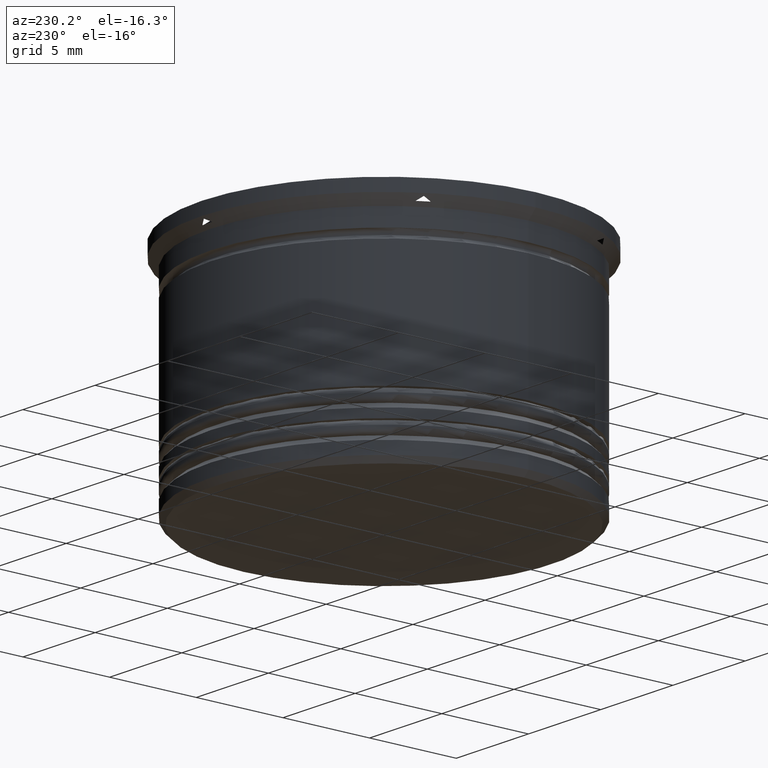
[diagram: clean part render]
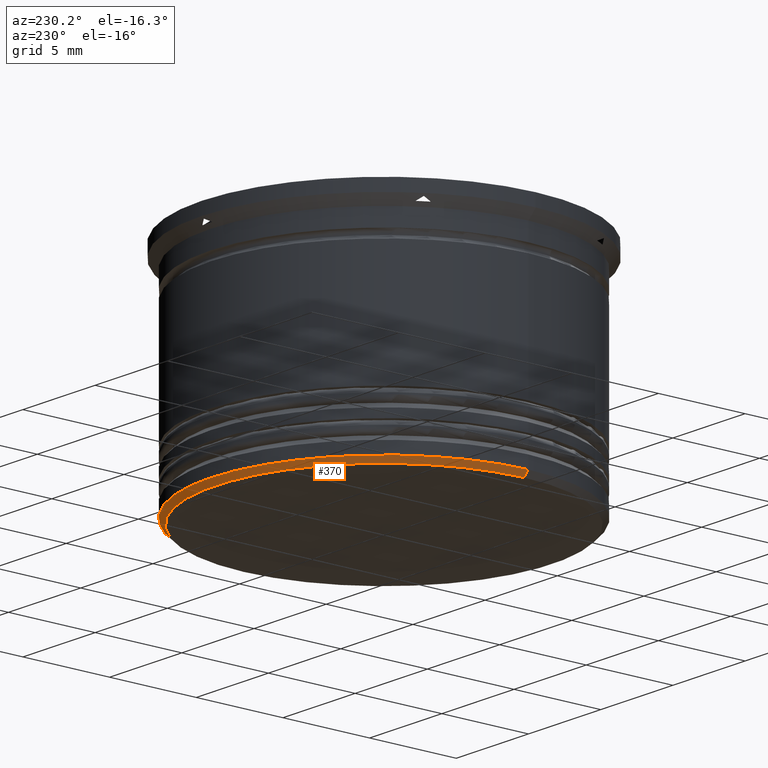
[diagram: same view with one face highlighted and labeled with its STEP entity id]
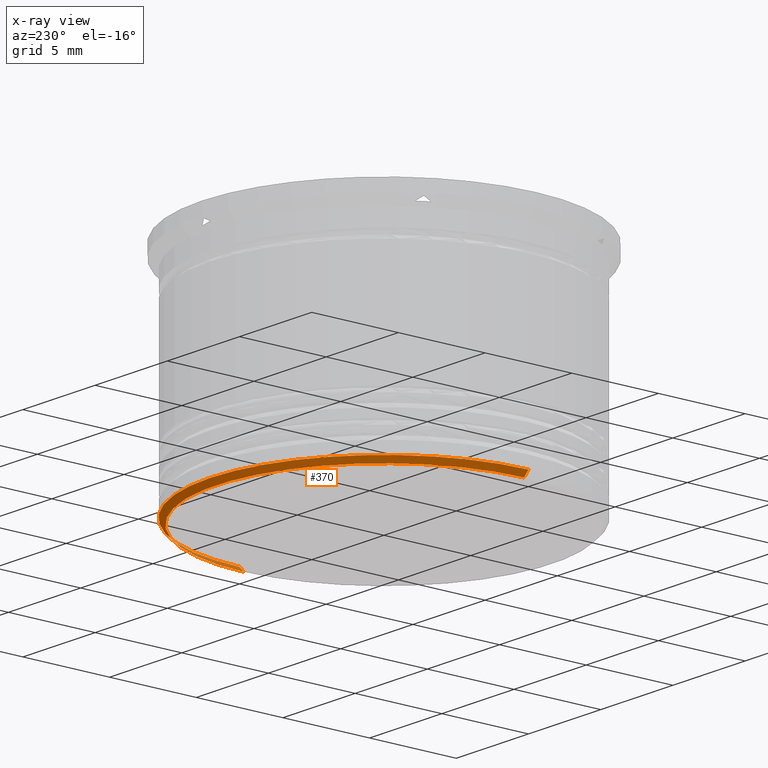
[diagram: x-ray of the same camera — body ghosted, the highlighted face saturated]
A machine part, auxiliary view. The second image highlights one B-rep face of the part: STEP entity #370.
The next image is the same camera in x-ray: the body ghosted, the highlighted face saturated — about 0% of this face is hidden behind the body in this view.
In plain terms, the highlighted conical surface has half-angle 45 deg.
Its self-contained STEP definition (entity closure, byte-faithful):
#17 = DIRECTION ( 'NONE',  ( -0.7071067811865495711, 8.659560562354957510E-17, 0.7071067811865454633 ) ) ;
#26 = AXIS2_PLACEMENT_3D ( 'NONE', #37, #800, #1423 ) ;
#37 = CARTESIAN_POINT ( 'NONE',  ( 0.000000000000000000, 0.000000000000000000, -12.69999999999999396 ) ) ;
#114 = DIRECTION ( 'NONE',  ( -0.000000000000000000, -0.000000000000000000, 1.000000000000000000 ) ) ;
#156 = CARTESIAN_POINT ( 'NONE',  ( 9.699999999999993960, 0.000000000000000000, -13.00000000000000178 ) ) ;
#212 = CARTESIAN_POINT ( 'NONE',  ( -10.00000000000000178, 1.224646799147353454E-15, -12.69999999999999396 ) ) ;
#291 = EDGE_LOOP ( 'NONE', ( #931, #1549, #1897, #1720 ) ) ;
#370 = ADVANCED_FACE ( 'NONE', ( #935 ), #637, .T. ) ;
#637 = CONICAL_SURFACE ( 'NONE', #1121, 10.00000000000000178, 0.7853981633974511656 ) ;
#671 = VECTOR ( 'NONE', #2114, 1000.000000000000000 ) ;
#787 = DIRECTION ( 'NONE',  ( 0.000000000000000000, 0.000000000000000000, -1.000000000000000000 ) ) ;
#800 = DIRECTION ( 'NONE',  ( -0.000000000000000000, -0.000000000000000000, 1.000000000000000000 ) ) ;
#925 = CARTESIAN_POINT ( 'NONE',  ( 0.000000000000000000, 0.000000000000000000, -12.69999999999999396 ) ) ;
#931 = ORIENTED_EDGE ( 'NONE', *, *, #1207, .F. ) ;
#935 = FACE_OUTER_BOUND ( 'NONE', #291, .T. ) ;
#1022 = AXIS2_PLACEMENT_3D ( 'NONE', #2068, #787, #1109 ) ;
#1029 = CARTESIAN_POINT ( 'NONE',  ( 10.00000000000000178, 0.000000000000000000, -12.69999999999999396 ) ) ;
#1047 = EDGE_CURVE ( 'NONE', #1282, #1828, #2013, .T. ) ;
#1109 = DIRECTION ( 'NONE',  ( -1.000000000000000000, 0.000000000000000000, 0.000000000000000000 ) ) ;
#1121 = AXIS2_PLACEMENT_3D ( 'NONE', #925, #114, #1796 ) ;
#1169 = CARTESIAN_POINT ( 'NONE',  ( -9.699999999999993960, 1.206277097160142629E-15, -13.00000000000000178 ) ) ;
#1194 = CIRCLE ( 'NONE', #26, 10.00000000000000178 ) ;
#1207 = EDGE_CURVE ( 'NONE', #1282, #1445, #1605, .T. ) ;
#1282 = VERTEX_POINT ( 'NONE', #1169 ) ;
#1423 = DIRECTION ( 'NONE',  ( -1.000000000000000000, 0.000000000000000000, 0.000000000000000000 ) ) ;
#1433 = LINE ( 'NONE', #1451, #671 ) ;
#1445 = VERTEX_POINT ( 'NONE', #156 ) ;
#1451 = CARTESIAN_POINT ( 'NONE',  ( 10.00000000000000178, 0.000000000000000000, -12.69999999999999396 ) ) ;
#1549 = ORIENTED_EDGE ( 'NONE', *, *, #1047, .T. ) ;
#1602 = VECTOR ( 'NONE', #17, 1000.000000000000000 ) ;
#1605 = CIRCLE ( 'NONE', #1022, 9.699999999999993960 ) ;
#1638 = VERTEX_POINT ( 'NONE', #1029 ) ;
#1689 = CARTESIAN_POINT ( 'NONE',  ( -10.00000000000000178, 1.224646799147353454E-15, -12.69999999999999396 ) ) ;
#1720 = ORIENTED_EDGE ( 'NONE', *, *, #2098, .F. ) ;
#1796 = DIRECTION ( 'NONE',  ( 1.000000000000000000, 0.000000000000000000, 0.000000000000000000 ) ) ;
#1828 = VERTEX_POINT ( 'NONE', #1689 ) ;
#1842 = EDGE_CURVE ( 'NONE', #1638, #1828, #1194, .T. ) ;
#1897 = ORIENTED_EDGE ( 'NONE', *, *, #1842, .F. ) ;
#2013 = LINE ( 'NONE', #212, #1602 ) ;
#2068 = CARTESIAN_POINT ( 'NONE',  ( 0.000000000000000000, 0.000000000000000000, -13.00000000000000178 ) ) ;
#2098 = EDGE_CURVE ( 'NONE', #1445, #1638, #1433, .T. ) ;
#2114 = DIRECTION ( 'NONE',  ( 0.7071067811865495711, 0.000000000000000000, 0.7071067811865454633 ) ) ;